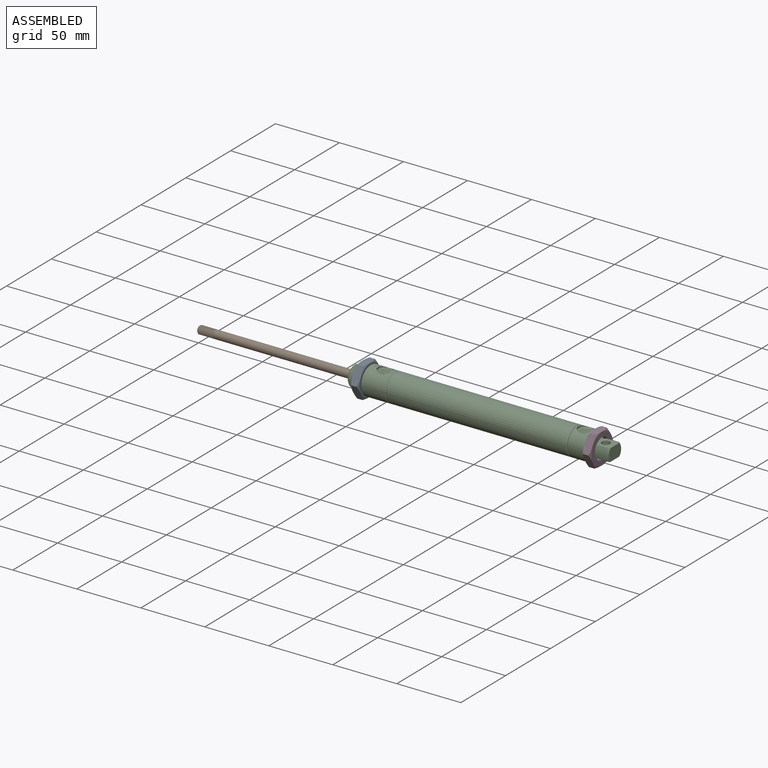
[diagram: assembled view]
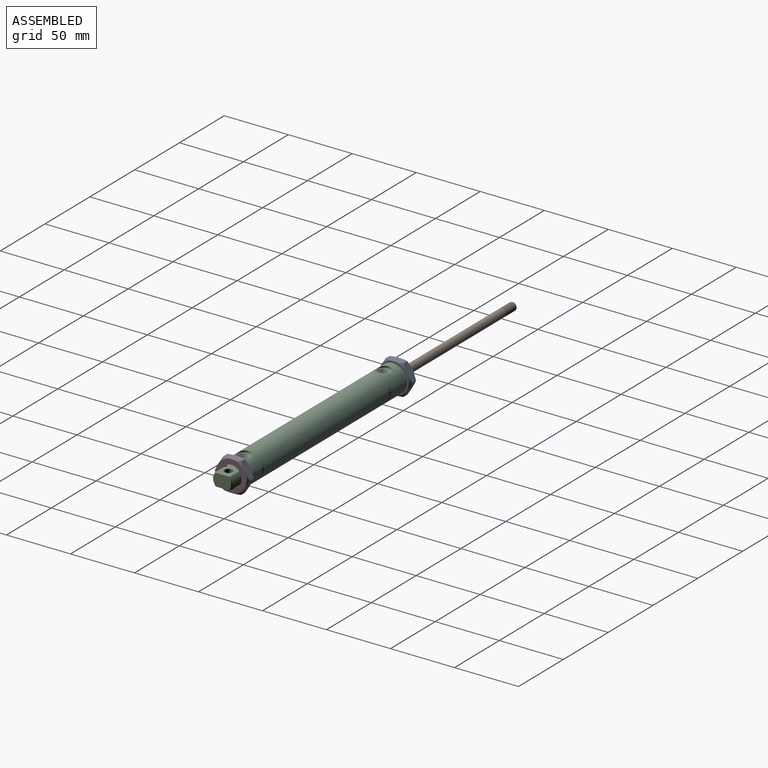
[diagram: assembled view, second angle]
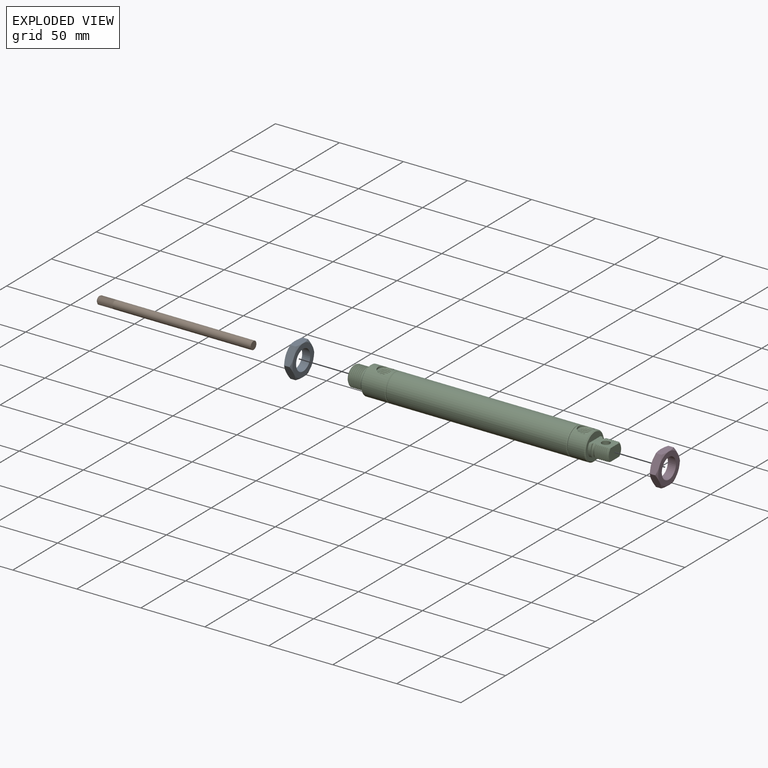
[diagram: exploded view]
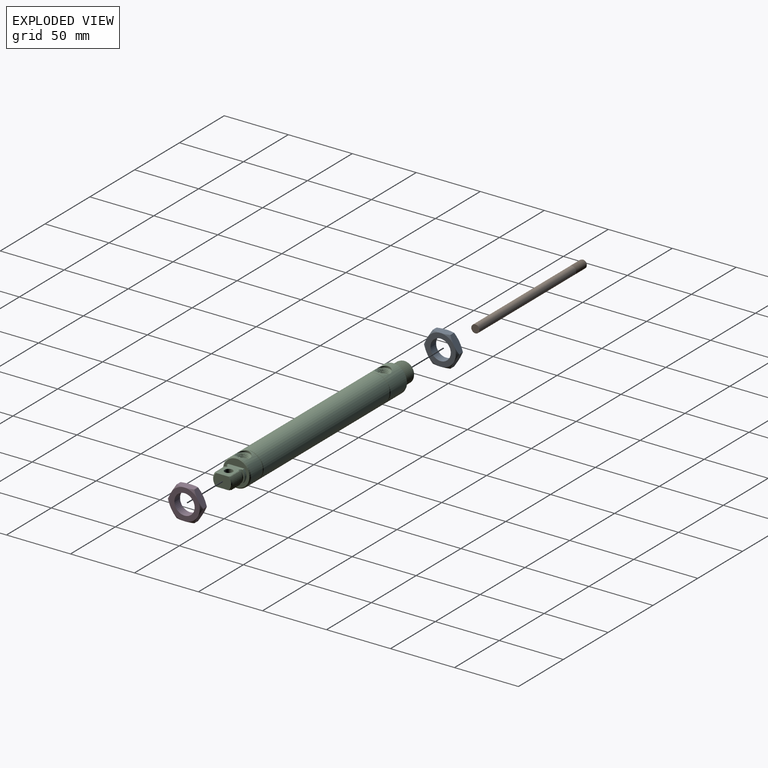
[diagram: exploded view, second angle]
ASSEMBLY  parts=4 mates=3
PART A: 21 faces, bbox 6.4x27.5x27.5 mm
  f0: cylinder r=7.94mm len=15.88mm, axis (-1,0,0), area 316.7mm2, adj f7,f8
  f1: plane 13.75x6.35mm, normal (0,0,-1), area 77.3mm2, adj f2,f6,f9,f14,f15,f20
  f2: plane 11.91x6.87mm, normal (0,0.87,-0.5), area 77.3mm2, adj f1,f3,f13,f14,f19,f20
  f3: plane 11.91x6.87mm, normal (0,0.87,0.5), area 77.3mm2, adj f2,f4,f12,f13,f18,f19
  f4: plane 13.75x6.35mm, normal (0,0,1), area 77.3mm2, adj f3,f5,f11,f12,f17,f18
  f5: plane 11.91x6.87mm, normal (0,-0.87,0.5), area 77.3mm2, adj f4,f6,f10,f11,f16,f17
  f6: plane 11.91x6.87mm, normal (0,-0.87,-0.5), area 77.3mm2, adj f1,f5,f9,f10,f15,f16
  f7: plane 23.81x23.81mm, normal (-1,0,0), area 247.4mm2, adj f0,f15,f16,f17,f18,f19,f20
  f8: plane 23.81x23.81mm, normal (1,0,0), area 247.4mm2, adj f0,f9,f10,f11,f12,f13,f14
  f9: cone r=11.91mm half-angle=60deg, axis (-1,0,0), area 8.8mm2, adj f1,f6,f8
  f10: cone r=11.91mm half-angle=60deg, axis (-1,0,0), area 8.8mm2, adj f5,f6,f8
  f11: cone r=11.91mm half-angle=60deg, axis (-1,0,0), area 8.8mm2, adj f4,f5,f8
  f12: cone r=11.91mm half-angle=60deg, axis (-1,0,0), area 8.8mm2, adj f3,f4,f8
  f13: cone r=11.91mm half-angle=60deg, axis (-1,0,0), area 8.8mm2, adj f2,f3,f8
  f14: cone r=11.91mm half-angle=60deg, axis (-1,0,0), area 8.8mm2, adj f1,f2,f8
  f15: cone r=11.91mm half-angle=60deg, axis (1,0,0), area 8.8mm2, adj f1,f6,f7
  f16: cone r=11.91mm half-angle=60deg, axis (1,0,0), area 8.8mm2, adj f5,f6,f7
  f17: cone r=11.91mm half-angle=60deg, axis (1,0,0), area 8.8mm2, adj f4,f5,f7
  f18: cone r=11.91mm half-angle=60deg, axis (1,0,0), area 8.8mm2, adj f3,f4,f7
  f19: cone r=11.91mm half-angle=60deg, axis (1,0,0), area 8.8mm2, adj f2,f3,f7
  f20: cone r=11.91mm half-angle=60deg, axis (1,0,0), area 8.8mm2, adj f1,f2,f7
PART B: 21 faces, bbox 121.8x6.7x6.7 mm
  f0: cone r=2.49mm half-angle=45deg, axis (1,0,0), area 9.5mm2, adj f1,f15,f16,f17,f18
  f1: cylinder r=3.17mm len=6.35mm, axis (-1,0,0), area 1.3mm2, adj f0,f2,f16,f18
  f2: cylinder r=3.17mm len=6.35mm, axis (-1,0,0), area 2.3mm2, adj f1,f3,f16,f18
  f3: cylinder r=3.17mm len=6.35mm, axis (-1,0,0), area 2.3mm2, adj f2,f4,f16,f18
  f4: cylinder r=3.17mm len=6.35mm, axis (-1,0,0), area 2.3mm2, adj f3,f5,f16,f18
  f5: cylinder r=3.17mm len=6.35mm, axis (-1,0,0), area 2.3mm2, adj f4,f6,f16,f18
  f6: cylinder r=3.17mm len=6.35mm, axis (-1,0,0), area 2.3mm2, adj f5,f7,f16,f18
  f7: cylinder r=3.17mm len=6.35mm, axis (-1,0,0), area 2.3mm2, adj f6,f8,f16,f18
  f8: cylinder r=3.17mm len=6.35mm, axis (-1,0,0), area 2.3mm2, adj f7,f9,f16,f18
  f9: cylinder r=3.17mm len=6.35mm, axis (-1,0,0), area 2.3mm2, adj f8,f10,f16,f18
  f10: cylinder r=3.17mm len=6.35mm, axis (-1,0,0), area 2.3mm2, adj f9,f11,f16,f18
  f11: cylinder r=3.17mm len=6.35mm, axis (-1,0,0), area 2.3mm2, adj f10,f12,f16,f18
  f12: cylinder r=3.17mm len=6.35mm, axis (-1,0,0), area 2.3mm2, adj f11,f13,f16,f18
  f13: cylinder r=3.17mm len=6.35mm, axis (-1,0,0), area 2.3mm2, adj f12,f14,f16,f18
  f14: cylinder r=3.17mm len=108.63mm, axis (-1,0,0), area 2155.1mm2, adj f13,f16,f18,f19,f20
  f15: plane 4.99x4.99mm, normal (-1,0,0), area 19.6mm2, adj f0
  f16: bspline ~13.15x6.35mm, area 167.2mm2, adj f0,f1,f2,f3,f4,f5,f6,f7
  f17: bspline ~12.84x5.1mm, area 25.6mm2, adj f0,f16,f18,f19
  f18: bspline ~13.83x6.35mm, area 181mm2, adj f0,f1,f2,f3,f4,f5,f6,f7
  f19: plane 6.7x6.7mm, normal (-1,0,0), area 5.5mm2, adj f14,f16,f17,f18
  f20: plane 6.35x6.35mm, normal (1,0,0), area 31.7mm2, adj f14
PART C: 127 faces, bbox 205.6x22.4x22.4 mm
  f0: torus R=7.56mm, axis (-1,0,0), area 33mm2, adj f49,f62,f63,f106,f108,f109
  f1: torus R=7.56mm, axis (-1,0,0), area 33.1mm2, adj f31,f32,f43,f105,f108,f109
  f2: cylinder r=5.14mm len=10.29mm, axis (0,0,1), area 23.6mm2, adj f118,f123,f125,f126
  f3: cylinder r=5.14mm len=10.29mm, axis (0,0,1), area 23.6mm2, adj f116,f119,f121,f122
  f4: cylinder r=5.66mm len=11.32mm, axis (0,0,-1), area 14mm2, adj f24,f118
  f5: cylinder r=5.66mm len=11.32mm, axis (0,0,-1), area 14mm2, adj f23,f116
  f6: cone r=7.94mm half-angle=45deg, axis (1,0,0), area 38.8mm2, adj f14,f111,f112,f113,f114
  f7: cylinder r=7.94mm len=15.88mm, axis (1,0,0), area 119mm2, adj f8,f29,f110,f111,f113
  f8: cylinder r=7.94mm len=15.88mm, axis (1,0,0), area 8.8mm2, adj f7,f9,f111,f113
  f9: cylinder r=7.94mm len=15.88mm, axis (1,0,0), area 8.8mm2, adj f8,f10,f111,f113
  f10: cylinder r=7.94mm len=15.88mm, axis (1,0,0), area 8.8mm2, adj f9,f11,f111,f113
  f11: cylinder r=7.94mm len=15.88mm, axis (1,0,0), area 8.8mm2, adj f10,f12,f111,f113
  f12: cylinder r=7.94mm len=15.88mm, axis (1,0,0), area 8.8mm2, adj f11,f13,f111,f113
  f13: cylinder r=7.94mm len=15.88mm, axis (1,0,0), area 8.8mm2, adj f12,f14,f111,f113
  f14: cylinder r=7.94mm len=5.61mm, axis (1,0,0), area 0.5mm2, adj f6,f13,f113
  f15: cylinder r=3.17mm len=9.65mm, axis (0,0,1), area 192.5mm2, adj f108,f109
  f16: cone r=10.92mm half-angle=45deg, axis (-1,0,0), area 71.4mm2, adj f24,f27
  f17: cone r=10.38mm half-angle=45deg, axis (1,0,0), area 51.7mm2, adj f24,f30
  f18: cone r=10.92mm half-angle=26.6deg, axis (-1,0,0), area 41.4mm2, adj f22,f30
  f19: cone r=10.16mm half-angle=45deg, axis (1,0,0), area 71.4mm2, adj f23,f29
  f20: cone r=10.92mm half-angle=45deg, axis (-1,0,0), area 51.7mm2, adj f23,f28
  f21: cone r=10.65mm half-angle=26.6deg, axis (1,0,0), area 41.4mm2, adj f22,f28
  f22: cylinder r=10.92mm len=140.53mm, axis (-1,0,0), area 9644mm2, adj f18,f21
  f23: cylinder r=10.92mm len=21.84mm, axis (-1,0,0), area 1156.5mm2, adj f5,f19,f20,f115
  f24: cylinder r=10.92mm len=21.84mm, axis (-1,0,0), area 800.7mm2, adj f4,f16,f17,f117
  f25: cone r=5.14mm half-angle=45deg, axis (0,0,1), area 13.3mm2, adj f116,f119,f120,f121
  f26: cone r=5.14mm half-angle=45deg, axis (0,0,1), area 13.3mm2, adj f118,f123,f124,f125
  f27: plane 20.32x20.32mm, normal (1,0,0), area 181.1mm2, adj f16,f47,f107,f108,f109
  f28: plane 21.3x21.3mm, normal (-1,0,0), area 18mm2, adj f20,f21
  f29: plane 20.32x20.32mm, normal (-1,0,0), area 126.4mm2, adj f7,f19
  f30: plane 21.3x21.3mm, normal (1,0,0), area 18mm2, adj f17,f18
  f31: bspline ~5.61x2.97mm, area 0mm2, adj f1,f32,f109
  f32: bspline ~9.93x2.06mm, area 0.6mm2, adj f1,f31,f43,f109
  f33: cylinder r=7.94mm len=9.65mm, axis (1,0,0), area 1.8mm2, adj f39,f41,f108,f109
  f34: bspline ~9.93x2.06mm, area 1.9mm2, adj f37,f40,f108,f109
  f35: bspline ~9.93x2.06mm, area 1.9mm2, adj f38,f41,f108,f109
  f36: bspline ~9.65x1.92mm, area 1.9mm2, adj f39,f81,f108,f109
  f37: bspline ~11.23x2.97mm, area 9.8mm2, adj f34,f77,f108,f109
  f38: bspline ~10.91x2.84mm, area 11.2mm2, adj f35,f44,f108,f109
  f39: bspline ~10.91x2.84mm, area 11.2mm2, adj f33,f36,f108,f109
  f40: bspline ~11.23x2.97mm, area 11.2mm2, adj f34,f44,f108,f109
  f41: bspline ~11.23x2.97mm, area 11.2mm2, adj f33,f35,f108,f109
  f42: cylinder r=7.94mm len=9.65mm, axis (1,0,0), area 1.8mm2, adj f43,f66,f108,f109
  f43: bspline ~11.23x2.97mm, area 9.9mm2, adj f1,f32,f42,f108,f109
  f44: cylinder r=7.94mm len=9.65mm, axis (1,0,0), area 1.8mm2, adj f38,f40,f108,f109
  f45: cone r=6.88mm half-angle=45deg, axis (-1,0,0), area 7.5mm2, adj f56,f78,f108,f109
  f46: plane 9.71x2.78mm, normal (1,0,0), area 9.2mm2, adj f62,f63,f64,f107,f108,f109
  f47: cylinder r=7.94mm len=9.65mm, axis (1,0,0), area 23.7mm2, adj f27,f105,f108,f109
  f48: cylinder r=7.94mm len=1.02mm, axis (1,0,0), area 0mm2, adj f49,f106,f108
  f49: bspline ~11.23x2.97mm, area 8.7mm2, adj f0,f48,f50,f106,f108,f109
  f50: bspline ~9.65x1.92mm, area 1.9mm2, adj f49,f67,f108,f109
  f51: cylinder r=7.94mm len=9.65mm, axis (1,0,0), area 1.8mm2, adj f61,f84,f108,f109
  f52: cylinder r=7.94mm len=9.65mm, axis (1,0,0), area 1.8mm2, adj f58,f60,f108,f109
  f53: bspline ~9.93x2.06mm, area 1.9mm2, adj f56,f59,f108,f109
  f54: bspline ~9.65x1.92mm, area 1.9mm2, adj f57,f60,f108,f109
  f55: bspline ~9.65x1.92mm, area 1.9mm2, adj f58,f61,f108,f109
  f56: bspline ~11.23x2.97mm, area 4.4mm2, adj f45,f53,f108,f109
  f57: bspline ~11.23x2.97mm, area 11.2mm2, adj f54,f76,f108,f109
  f58: bspline ~11.23x2.97mm, area 11.2mm2, adj f52,f55,f108,f109
  f59: bspline ~11.23x2.97mm, area 11.2mm2, adj f53,f76,f108,f109
  f60: bspline ~11.23x2.97mm, area 11.2mm2, adj f52,f54,f108,f109
  f61: bspline ~10.91x2.84mm, area 11.2mm2, adj f51,f55,f108,f109
  f62: bspline ~6.59x1.92mm, area 0.6mm2, adj f0,f46,f63,f64,f108
  f63: bspline ~11.23x2.97mm, area 0.7mm2, adj f0,f46,f62,f109
  f64: bspline ~1.33x1.03mm, area 0.1mm2, adj f46,f62,f108
  f65: cylinder r=7.94mm len=9.65mm, axis (1,0,0), area 1.8mm2, adj f67,f103,f108,f109
  f66: bspline ~10.91x2.84mm, area 11.2mm2, adj f42,f68,f108,f109
  f67: bspline ~10.91x2.84mm, area 11.2mm2, adj f50,f65,f108,f109
  f68: bspline ~9.65x1.92mm, area 1.9mm2, adj f66,f104,f108,f109
  f69: cylinder r=7.94mm len=9.65mm, axis (1,0,0), area 1.8mm2, adj f81,f87,f108,f109
  f70: cylinder r=7.94mm len=9.65mm, axis (1,0,0), area 1.8mm2, adj f85,f90,f108,f109
  f71: cylinder r=7.94mm len=9.65mm, axis (1,0,0), area 1.8mm2, adj f88,f93,f108,f109
  f72: cylinder r=7.94mm len=9.65mm, axis (1,0,0), area 1.8mm2, adj f91,f96,f108,f109
  f73: cylinder r=7.94mm len=9.65mm, axis (1,0,0), area 1.8mm2, adj f94,f99,f108,f109
  f74: cylinder r=7.94mm len=9.65mm, axis (1,0,0), area 1.8mm2, adj f97,f102,f108,f109
  f75: cylinder r=7.94mm len=9.65mm, axis (1,0,0), area 1.8mm2, adj f100,f104,f108,f109
  f76: cylinder r=7.94mm len=9.65mm, axis (1,0,0), area 1.8mm2, adj f57,f59,f108,f109
  f77: cone r=6.88mm half-angle=45deg, axis (-1,0,0), area 12mm2, adj f37,f78,f79,f80,f82,f108,f109
  f78: plane 13.76x9.65mm, normal (1,0,0), area 120.9mm2, adj f45,f77,f108,f109
  f79: bspline ~9.93x2.06mm, area 0.7mm2, adj f77,f80,f82,f108
  f80: bspline ~5.61x2.97mm, area 0mm2, adj f77,f79,f108
  f81: bspline ~11.23x2.97mm, area 11.2mm2, adj f36,f69,f108,f109
  f82: bspline ~11.23x2.97mm, area 1.7mm2, adj f77,f79,f108
  f83: bspline ~9.93x2.06mm, area 1.9mm2, adj f84,f85,f108,f109
  f84: bspline ~11.23x2.97mm, area 11.2mm2, adj f51,f83,f108,f109
  f85: bspline ~10.91x2.84mm, area 11.2mm2, adj f70,f83,f108,f109
  f86: bspline ~9.65x1.92mm, area 1.9mm2, adj f87,f88,f108,f109
  f87: bspline ~11.23x2.97mm, area 11.2mm2, adj f69,f86,f108,f109
  f88: bspline ~11.23x2.97mm, area 11.2mm2, adj f71,f86,f108,f109
  f89: bspline ~9.93x2.06mm, area 1.9mm2, adj f90,f91,f108,f109
  f90: bspline ~11.23x2.97mm, area 11.2mm2, adj f70,f89,f108,f109
  f91: bspline ~11.23x2.97mm, area 11.2mm2, adj f72,f89,f108,f109
  f92: bspline ~9.93x2.06mm, area 1.9mm2, adj f93,f94,f108,f109
  f93: bspline ~11.23x2.97mm, area 11.2mm2, adj f71,f92,f108,f109
  f94: bspline ~11.23x2.97mm, area 11.2mm2, adj f73,f92,f108,f109
  f95: bspline ~9.93x2.06mm, area 1.9mm2, adj f96,f97,f108,f109
  f96: bspline ~11.23x2.97mm, area 11.2mm2, adj f72,f95,f108,f109
  f97: bspline ~11.23x2.97mm, area 11.2mm2, adj f74,f95,f108,f109
  f98: bspline ~9.65x1.92mm, area 1.9mm2, adj f99,f100,f108,f109
  f99: bspline ~11.23x2.97mm, area 11.2mm2, adj f73,f98,f108,f109
  f100: bspline ~11.23x2.97mm, area 11.2mm2, adj f75,f98,f108,f109
  f101: bspline ~9.93x2.06mm, area 1.9mm2, adj f102,f103,f108,f109
  f102: bspline ~10.91x2.84mm, area 11.2mm2, adj f74,f101,f108,f109
  f103: bspline ~11.23x2.97mm, area 11.2mm2, adj f65,f101,f108,f109
  f104: bspline ~11.23x2.97mm, area 11.2mm2, adj f68,f75,f108,f109
  f105: plane 9.65x2.12mm, normal (1,0,0), area 4mm2, adj f1,f47,f108,f109
  f106: plane 8.39x2.07mm, normal (-1,0,0), area 1.9mm2, adj f0,f48,f49,f108
  f107: cylinder r=7.94mm len=9.65mm, axis (1,0,0), area 23.7mm2, adj f27,f46,f108,f109
  f108: plane 16.05x12.91mm, normal (0,0,1), area 145.2mm2, adj f0,f1,f15,f27,f33,f34,f35,f36
  f109: plane 16.05x12.91mm, normal (0,0,-1), area 144.8mm2, adj f0,f1,f15,f27,f31,f32,f33,f34
  f110: plane 16.44x16.44mm, normal (-1,0,0), area 21.9mm2, adj f7,f111,f112,f113
  f111: bspline ~15.86x15.85mm, area 345.7mm2, adj f6,f7,f8,f9,f10,f11,f12,f13
  f112: bspline ~14.03x14.03mm, area 56.6mm2, adj f6,f110,f111,f113
  f113: bspline ~15.88x15.88mm, area 345.1mm2, adj f6,f7,f8,f9,f10,f11,f12,f13
  f114: plane 13.76x13.76mm, normal (-1,0,0), area 148.7mm2, adj f6
  f115: cylinder r=5.66mm len=11.32mm, axis (0,0,-1), area 14mm2, adj f23,f116
  f116: plane 11.32x11.32mm, normal (0,0,1), area 17.5mm2, adj f3,f5,f25,f115
  f117: cylinder r=5.66mm len=11.32mm, axis (0,0,-1), area 0mm2, adj f24,f118
  f118: plane 11.32x11.32mm, normal (0,0,1), area 17.5mm2, adj f2,f4,f26,f117
  f119: bspline ~10.29x10.29mm, area 115.6mm2, adj f3,f25,f120,f122
  f120: bspline ~9.06x9.05mm, area 18.6mm2, adj f25,f119,f121,f122
  f121: bspline ~10.28x10.27mm, area 126.4mm2, adj f3,f25,f120,f122
  f122: plane 10.11x10.1mm, normal (0,0,1), area 73.7mm2, adj f3,f119,f120,f121
  f123: bspline ~10.29x10.29mm, area 115.6mm2, adj f2,f26,f124,f126
  f124: bspline ~9.06x9.05mm, area 18.6mm2, adj f26,f123,f125,f126
  f125: bspline ~10.28x10.27mm, area 126.4mm2, adj f2,f26,f124,f126
  f126: plane 10.11x10.1mm, normal (0,0,1), area 73.7mm2, adj f2,f123,f124,f125
PART D: 21 faces, bbox 6.4x27.5x27.5 mm
  f0: cylinder r=7.94mm len=15.88mm, axis (-1,0,0), area 316.7mm2, adj f7,f8
  f1: plane 11.91x6.87mm, normal (0,0.87,0.5), area 77.3mm2, adj f2,f6,f9,f14,f18,f19
  f2: plane 13.75x6.35mm, normal (0,0,1), area 77.3mm2, adj f1,f3,f13,f14,f17,f18
  f3: plane 11.91x6.87mm, normal (0,-0.87,0.5), area 77.3mm2, adj f2,f4,f12,f13,f16,f17
  f4: plane 11.91x6.87mm, normal (0,-0.87,-0.5), area 77.3mm2, adj f3,f5,f11,f12,f15,f16
  f5: plane 13.75x6.35mm, normal (0,0,-1), area 77.3mm2, adj f4,f6,f10,f11,f15,f20
  f6: plane 11.91x6.87mm, normal (0,0.87,-0.5), area 77.3mm2, adj f1,f5,f9,f10,f19,f20
  f7: plane 23.81x23.81mm, normal (-1,0,0), area 247.4mm2, adj f0,f15,f16,f17,f18,f19,f20
  f8: plane 23.81x23.81mm, normal (1,0,0), area 247.4mm2, adj f0,f9,f10,f11,f12,f13,f14
  f9: cone r=11.91mm half-angle=60deg, axis (-1,0,0), area 8.8mm2, adj f1,f6,f8
  f10: cone r=11.91mm half-angle=60deg, axis (-1,0,0), area 8.8mm2, adj f5,f6,f8
  f11: cone r=11.91mm half-angle=60deg, axis (-1,0,0), area 8.8mm2, adj f4,f5,f8
  f12: cone r=11.91mm half-angle=60deg, axis (-1,0,0), area 8.8mm2, adj f3,f4,f8
  f13: cone r=11.91mm half-angle=60deg, axis (-1,0,0), area 8.8mm2, adj f2,f3,f8
  f14: cone r=11.91mm half-angle=60deg, axis (-1,0,0), area 8.8mm2, adj f1,f2,f8
  f15: cone r=11.91mm half-angle=60deg, axis (1,0,0), area 8.8mm2, adj f4,f5,f7
  f16: cone r=11.91mm half-angle=60deg, axis (1,0,0), area 8.8mm2, adj f3,f4,f7
  f17: cone r=11.91mm half-angle=60deg, axis (1,0,0), area 8.8mm2, adj f2,f3,f7
  f18: cone r=11.91mm half-angle=60deg, axis (1,0,0), area 8.8mm2, adj f1,f2,f7
  f19: cone r=11.91mm half-angle=60deg, axis (1,0,0), area 8.8mm2, adj f1,f6,f7
  f20: cone r=11.91mm half-angle=60deg, axis (1,0,0), area 8.8mm2, adj f5,f6,f7
PLACE A t=(-171.03,-12.52,-2.34)mm
PLACE B t=(-180.55,-12.52,-2.34)mm
PLACE C rot(axis=(0.37,-0.01,0.93),0deg) t=(-174.2,-12.52,-2.34)mm fixed
PLACE D t=(-177.25,-12.52,-2.34)mm
MATE fastened D.f0 <-> C.f6  axis (1,0,0) through (-82.38,-12.52,-2.34)mm
MATE fastened A.f0 <-> C.f0  axis (1,0,0) through (-257.13,-12.52,-2.34)mm
MATE slider B.f0 <-> C.f6  axis (-1,0,0) through (-269.83,-12.52,-2.34)mm
